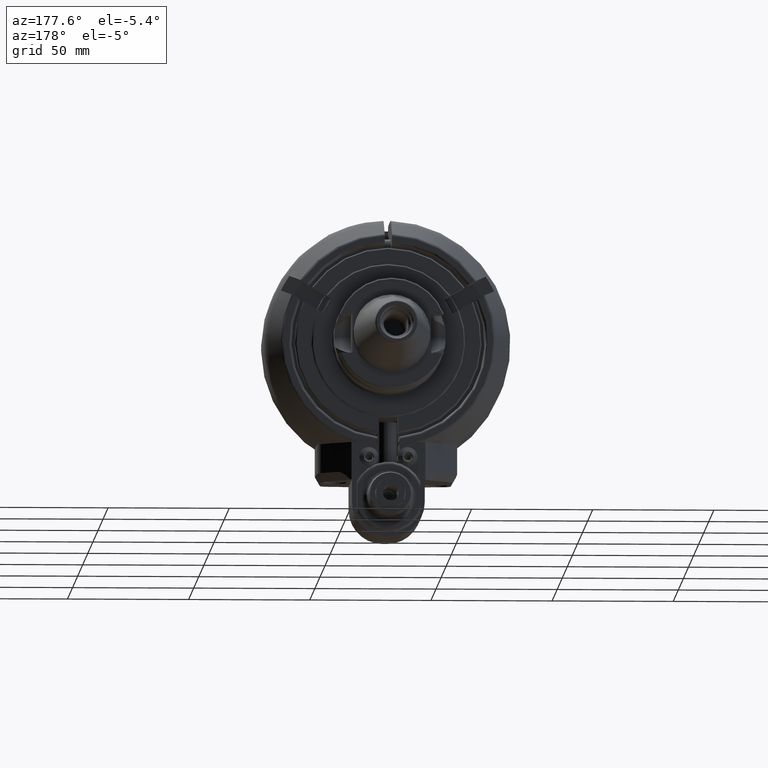
[diagram: clean part render]
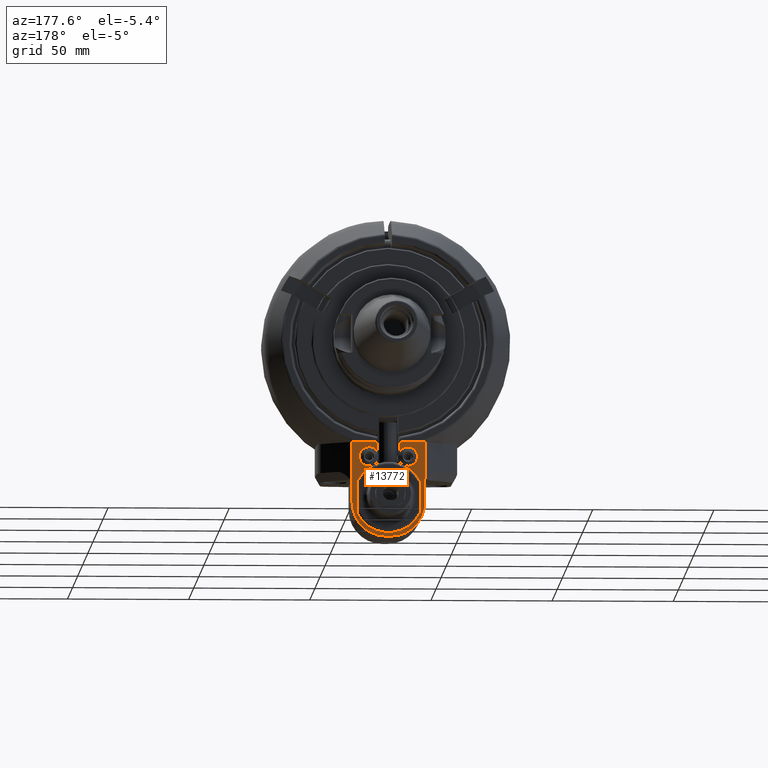
[diagram: same view with one face highlighted and labeled with its STEP entity id]
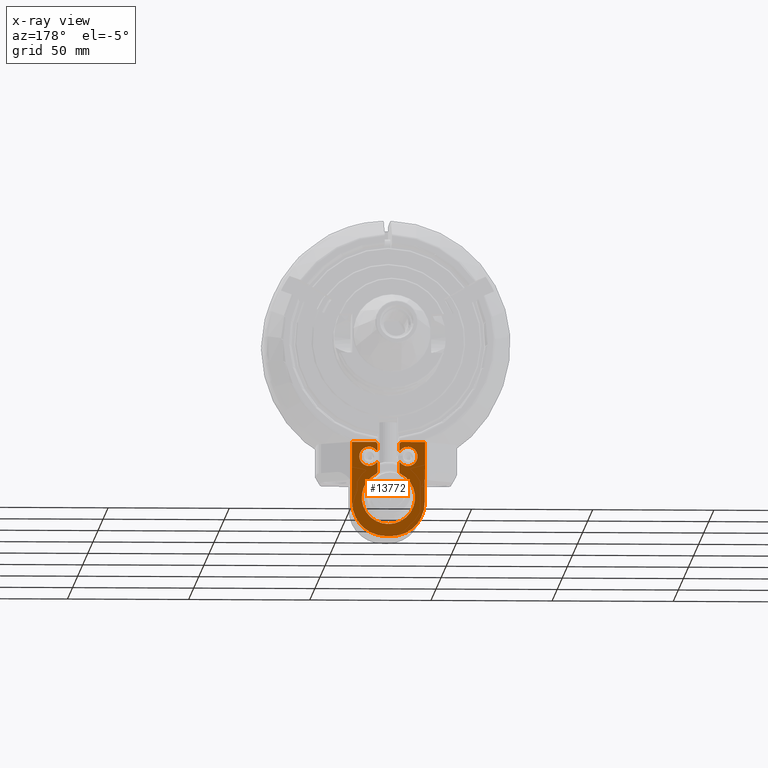
[diagram: x-ray of the same camera — body ghosted, the highlighted face saturated]
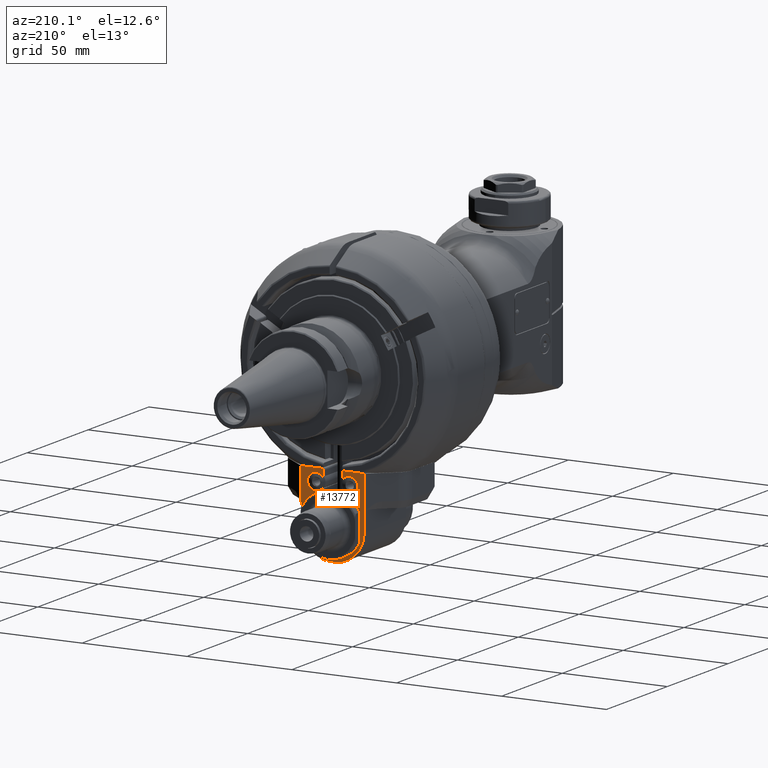
[diagram: same view with one face highlighted and labeled with its STEP entity id]
A machine part, auxiliary view. The second image highlights one B-rep face of the part: STEP entity #13772.
The next image is the same camera in x-ray: the body ghosted, the highlighted face saturated — about 0% of this face is hidden behind the body in this view.
A second angle (auxiliary view) of the same face is appended — the face is thin or edge-on in the first view.
In plain terms, the highlighted planar face has unit normal (0, 1, -0).
Its self-contained STEP definition (entity closure, byte-faithful):
#797=PLANE('',#15030);
#1554=FACE_OUTER_BOUND('',#2478,.T.);
#2478=EDGE_LOOP('',(#10700,#10701,#10702,#10703,#10704,#10705,#10706,#10707,
#10708,#10709,#10710,#10711,#10712,#10713,#10714,#10715,#10716,#10717,#10718,
#10719,#10720,#10721,#10722,#10723,#10724,#10725,#10726,#10727,#10728,#10729));
#3467=CIRCLE('',#15031,14.);
#3468=CIRCLE('',#15032,14.);
#3469=CIRCLE('',#15033,1.);
#3470=CIRCLE('',#15034,4.);
#3471=CIRCLE('',#15035,1.);
#3472=CIRCLE('',#15036,11.);
#3473=CIRCLE('',#15037,1.);
#3474=CIRCLE('',#15038,4.);
#3475=CIRCLE('',#15039,4.);
#3476=CIRCLE('',#15040,1.);
#4339=LINE('',#22636,#5213);
#4343=LINE('',#22644,#5217);
#4356=LINE('',#22711,#5230);
#4367=LINE('',#22758,#5241);
#4369=LINE('',#22762,#5243);
#4370=LINE('',#22764,#5244);
#4371=LINE('',#22766,#5245);
#4372=LINE('',#22768,#5246);
#4373=LINE('',#22770,#5247);
#4374=LINE('',#22772,#5248);
#4375=LINE('',#22776,#5249);
#4376=LINE('',#22778,#5250);
#4377=LINE('',#22782,#5251);
#4378=LINE('',#22784,#5252);
#4379=LINE('',#22788,#5253);
#4380=LINE('',#22790,#5254);
#4381=LINE('',#22798,#5255);
#4382=LINE('',#22800,#5256);
#4383=LINE('',#22806,#5257);
#4384=LINE('',#22808,#5258);
#5213=VECTOR('',#17654,9.612848348261);
#5217=VECTOR('',#17658,9.612848348261);
#5230=VECTOR('',#17703,0.1128483482606);
#5241=VECTOR('',#17736,9.5);
#5243=VECTOR('',#17740,15.5);
#5244=VECTOR('',#17741,0.1128483482606);
#5245=VECTOR('',#17742,0.7629679276389);
#5246=VECTOR('',#17743,10.);
#5247=VECTOR('',#17744,10.);
#5248=VECTOR('',#17745,8.70839142844);
#5249=VECTOR('',#17748,2.);
#5250=VECTOR('',#17751,15.5);
#5251=VECTOR('',#17754,2.5);
#5252=VECTOR('',#17755,0.3775010008008);
#5253=VECTOR('',#17758,0.3775010008008);
#5254=VECTOR('',#17759,3.834635496149);
#5255=VECTOR('',#17766,3.834635496149);
#5256=VECTOR('',#17767,0.3775010008008);
#5257=VECTOR('',#17772,0.3775010008008);
#5258=VECTOR('',#17773,2.5);
#6255=VERTEX_POINT('',#22633);
#6256=VERTEX_POINT('',#22635);
#6259=VERTEX_POINT('',#22641);
#6260=VERTEX_POINT('',#22643);
#6285=VERTEX_POINT('',#22708);
#6286=VERTEX_POINT('',#22710);
#6292=VERTEX_POINT('',#22757);
#6293=VERTEX_POINT('',#22761);
#6294=VERTEX_POINT('',#22763);
#6295=VERTEX_POINT('',#22765);
#6296=VERTEX_POINT('',#22767);
#6297=VERTEX_POINT('',#22769);
#6298=VERTEX_POINT('',#22771);
#6299=VERTEX_POINT('',#22773);
#6300=VERTEX_POINT('',#22775);
#6301=VERTEX_POINT('',#22779);
#6302=VERTEX_POINT('',#22781);
#6303=VERTEX_POINT('',#22783);
#6304=VERTEX_POINT('',#22785);
#6305=VERTEX_POINT('',#22787);
#6306=VERTEX_POINT('',#22789);
#6307=VERTEX_POINT('',#22791);
#6308=VERTEX_POINT('',#22793);
#6309=VERTEX_POINT('',#22795);
#6310=VERTEX_POINT('',#22797);
#6311=VERTEX_POINT('',#22799);
#6312=VERTEX_POINT('',#22801);
#6313=VERTEX_POINT('',#22803);
#6314=VERTEX_POINT('',#22805);
#6315=VERTEX_POINT('',#22807);
#7856=EDGE_CURVE('',#6256,#6255,#4339,.T.);
#7860=EDGE_CURVE('',#6259,#6260,#4343,.T.);
#7890=EDGE_CURVE('',#6286,#6285,#4356,.T.);
#7905=EDGE_CURVE('',#6292,#6286,#4367,.T.);
#7907=EDGE_CURVE('',#6293,#6255,#4369,.T.);
#7908=EDGE_CURVE('',#6293,#6294,#4370,.T.);
#7909=EDGE_CURVE('',#6295,#6294,#4371,.T.);
#7910=EDGE_CURVE('',#6295,#6296,#4372,.T.);
#7911=EDGE_CURVE('',#6296,#6297,#4373,.T.);
#7912=EDGE_CURVE('',#6298,#6297,#4374,.T.);
#7913=EDGE_CURVE('',#6298,#6299,#3467,.T.);
#7914=EDGE_CURVE('',#6299,#6300,#4375,.T.);
#7915=EDGE_CURVE('',#6300,#6292,#3468,.T.);
#7916=EDGE_CURVE('',#6260,#6285,#4376,.T.);
#7917=EDGE_CURVE('',#6259,#6301,#3469,.T.);
#7918=EDGE_CURVE('',#6301,#6302,#4377,.T.);
#7919=EDGE_CURVE('',#6303,#6302,#4378,.T.);
#7920=EDGE_CURVE('',#6303,#6304,#3470,.T.);
#7921=EDGE_CURVE('',#6305,#6304,#4379,.T.);
#7922=EDGE_CURVE('',#6305,#6306,#4380,.T.);
#7923=EDGE_CURVE('',#6306,#6307,#3471,.T.);
#7924=EDGE_CURVE('',#6307,#6308,#3472,.T.);
#7925=EDGE_CURVE('',#6308,#6309,#3473,.T.);
#7926=EDGE_CURVE('',#6309,#6310,#4381,.T.);
#7927=EDGE_CURVE('',#6311,#6310,#4382,.T.);
#7928=EDGE_CURVE('',#6311,#6312,#3474,.T.);
#7929=EDGE_CURVE('',#6312,#6313,#3475,.T.);
#7930=EDGE_CURVE('',#6314,#6313,#4383,.T.);
#7931=EDGE_CURVE('',#6314,#6315,#4384,.T.);
#7932=EDGE_CURVE('',#6315,#6256,#3476,.T.);
#10700=ORIENTED_EDGE('',*,*,#7907,.F.);
#10701=ORIENTED_EDGE('',*,*,#7908,.T.);
#10702=ORIENTED_EDGE('',*,*,#7909,.F.);
#10703=ORIENTED_EDGE('',*,*,#7910,.T.);
#10704=ORIENTED_EDGE('',*,*,#7911,.T.);
#10705=ORIENTED_EDGE('',*,*,#7912,.F.);
#10706=ORIENTED_EDGE('',*,*,#7913,.T.);
#10707=ORIENTED_EDGE('',*,*,#7914,.T.);
#10708=ORIENTED_EDGE('',*,*,#7915,.T.);
#10709=ORIENTED_EDGE('',*,*,#7905,.T.);
#10710=ORIENTED_EDGE('',*,*,#7890,.T.);
#10711=ORIENTED_EDGE('',*,*,#7916,.F.);
#10712=ORIENTED_EDGE('',*,*,#7860,.F.);
#10713=ORIENTED_EDGE('',*,*,#7917,.T.);
#10714=ORIENTED_EDGE('',*,*,#7918,.T.);
#10715=ORIENTED_EDGE('',*,*,#7919,.F.);
#10716=ORIENTED_EDGE('',*,*,#7920,.T.);
#10717=ORIENTED_EDGE('',*,*,#7921,.F.);
#10718=ORIENTED_EDGE('',*,*,#7922,.T.);
#10719=ORIENTED_EDGE('',*,*,#7923,.T.);
#10720=ORIENTED_EDGE('',*,*,#7924,.T.);
#10721=ORIENTED_EDGE('',*,*,#7925,.T.);
#10722=ORIENTED_EDGE('',*,*,#7926,.T.);
#10723=ORIENTED_EDGE('',*,*,#7927,.F.);
#10724=ORIENTED_EDGE('',*,*,#7928,.T.);
#10725=ORIENTED_EDGE('',*,*,#7929,.T.);
#10726=ORIENTED_EDGE('',*,*,#7930,.F.);
#10727=ORIENTED_EDGE('',*,*,#7931,.T.);
#10728=ORIENTED_EDGE('',*,*,#7932,.T.);
#10729=ORIENTED_EDGE('',*,*,#7856,.T.);
#13772=ADVANCED_FACE('',(#1554),#797,.T.);
#15030=AXIS2_PLACEMENT_3D('',#22760,#17738,#17739);
#15031=AXIS2_PLACEMENT_3D('',#22774,#17746,#17747);
#15032=AXIS2_PLACEMENT_3D('',#22777,#17749,#17750);
#15033=AXIS2_PLACEMENT_3D('',#22780,#17752,#17753);
#15034=AXIS2_PLACEMENT_3D('',#22786,#17756,#17757);
#15035=AXIS2_PLACEMENT_3D('',#22792,#17760,#17761);
#15036=AXIS2_PLACEMENT_3D('',#22794,#17762,#17763);
#15037=AXIS2_PLACEMENT_3D('',#22796,#17764,#17765);
#15038=AXIS2_PLACEMENT_3D('',#22802,#17768,#17769);
#15039=AXIS2_PLACEMENT_3D('',#22804,#17770,#17771);
#15040=AXIS2_PLACEMENT_3D('',#22809,#17774,#17775);
#17654=DIRECTION('',(1.,0.,0.));
#17658=DIRECTION('',(-1.,0.,0.));
#17703=DIRECTION('',(-1.,0.,0.));
#17736=DIRECTION('',(0.,0.,1.));
#17738=DIRECTION('center_axis',(0.,1.,0.));
#17739=DIRECTION('ref_axis',(0.,0.,1.));
#17740=DIRECTION('',(0.,0.,1.));
#17741=DIRECTION('',(-1.,0.,0.));
#17742=DIRECTION('',(-3.073496587321E-9,-8.754105479655E-13,1.));
#17743=DIRECTION('',(-0.511856989632144,0.,-0.859070673556442));
#17744=DIRECTION('',(0.98864812341285,0.,-0.150249419540475));
#17745=DIRECTION('',(0.,0.,1.));
#17746=DIRECTION('center_axis',(0.,1.,0.));
#17747=DIRECTION('ref_axis',(1.,0.,0.));
#17748=DIRECTION('',(-1.,0.,0.));
#17749=DIRECTION('center_axis',(0.,1.,0.));
#17750=DIRECTION('ref_axis',(0.,0.,-1.));
#17751=DIRECTION('',(0.,0.,-1.));
#17752=DIRECTION('center_axis',(0.,1.,0.));
#17753=DIRECTION('ref_axis',(0.,0.,1.));
#17754=DIRECTION('',(0.,0.,-1.));
#17755=DIRECTION('',(1.,0.,0.));
#17756=DIRECTION('center_axis',(0.,-1.,0.));
#17757=DIRECTION('ref_axis',(-1.,0.,0.));
#17758=DIRECTION('',(-1.,0.,0.));
#17759=DIRECTION('',(0.,0.,-1.));
#17760=DIRECTION('center_axis',(0.,1.,0.));
#17761=DIRECTION('ref_axis',(1.,0.,0.));
#17762=DIRECTION('center_axis',(0.,-1.,0.));
#17763=DIRECTION('ref_axis',(0.,0.,-1.));
#17764=DIRECTION('center_axis',(0.,1.,0.));
#17765=DIRECTION('ref_axis',(-0.458333333332909,0.,-0.888780375321117));
#17766=DIRECTION('',(0.,0.,1.));
#17767=DIRECTION('',(-1.,0.,0.));
#17768=DIRECTION('center_axis',(0.,-1.,0.));
#17769=DIRECTION('ref_axis',(1.,0.,0.));
#17770=DIRECTION('center_axis',(0.,-1.,0.));
#17771=DIRECTION('ref_axis',(1.,0.,0.));
#17772=DIRECTION('',(1.,0.,0.));
#17773=DIRECTION('',(0.,0.,1.));
#17774=DIRECTION('center_axis',(0.,1.,0.));
#17775=DIRECTION('ref_axis',(-1.,0.,0.));
#22633=CARTESIAN_POINT('',(15.11284834826,39.5,-42.));
#22635=CARTESIAN_POINT('',(5.5,39.5,-42.));
#22636=CARTESIAN_POINT('',(5.5,39.5,-42.));
#22641=CARTESIAN_POINT('',(-5.5,39.5,-42.));
#22643=CARTESIAN_POINT('',(-15.11284834826,39.5,-42.));
#22644=CARTESIAN_POINT('',(-5.5,39.5,-42.));
#22708=CARTESIAN_POINT('',(-15.11284834826,39.5,-57.5));
#22710=CARTESIAN_POINT('',(-15.,39.5,-57.5));
#22711=CARTESIAN_POINT('',(-15.,39.5,-57.5));
#22757=CARTESIAN_POINT('',(-15.,39.5,-67.));
#22758=CARTESIAN_POINT('',(-15.,39.5,-67.));
#22760=CARTESIAN_POINT('Origin',(0.,39.5,-40.75));
#22761=CARTESIAN_POINT('',(15.11284834826,39.5,-57.5));
#22762=CARTESIAN_POINT('',(15.11284834826,39.5,-57.5));
#22763=CARTESIAN_POINT('',(15.,39.5,-57.5));
#22764=CARTESIAN_POINT('',(15.11284834826,39.5,-57.5));
#22765=CARTESIAN_POINT('',(15.000000003054,39.5000000001996,-58.2629679283757));
#22766=CARTESIAN_POINT('',(15.00000000234,39.5,-58.26296792764));
#22767=CARTESIAN_POINT('',(14.98435207752,39.5,-58.28923048454));
#22768=CARTESIAN_POINT('',(15.00000000234,39.5,-58.26296792764));
#22769=CARTESIAN_POINT('',(15.,39.5,-58.29160857156));
#22770=CARTESIAN_POINT('',(14.98435207752,39.5,-58.28923048454));
#22771=CARTESIAN_POINT('',(15.,39.5,-67.));
#22772=CARTESIAN_POINT('',(15.,39.5,-67.));
#22773=CARTESIAN_POINT('',(1.,39.5,-81.));
#22774=CARTESIAN_POINT('Origin',(1.,39.5,-67.));
#22775=CARTESIAN_POINT('',(-1.,39.5,-81.));
#22776=CARTESIAN_POINT('',(1.,39.5,-81.));
#22777=CARTESIAN_POINT('Origin',(-1.,39.5,-67.));
#22778=CARTESIAN_POINT('',(-15.11284834826,39.5,-42.));
#22779=CARTESIAN_POINT('',(-4.5,39.5,-43.));
#22780=CARTESIAN_POINT('Origin',(-5.5,39.5,-43.));
#22781=CARTESIAN_POINT('',(-4.5,39.5,-45.5));
#22782=CARTESIAN_POINT('',(-4.5,39.5,-43.));
#22783=CARTESIAN_POINT('',(-4.877501000801,39.5,-45.5));
#22784=CARTESIAN_POINT('',(-4.877501000801,39.5,-45.5));
#22785=CARTESIAN_POINT('',(-4.877501000801,39.5,-50.5));
#22786=CARTESIAN_POINT('Origin',(-8.,39.5,-48.));
#22787=CARTESIAN_POINT('',(-4.5,39.5,-50.5));
#22788=CARTESIAN_POINT('',(-4.5,39.5,-50.5));
#22789=CARTESIAN_POINT('',(-4.5,39.5,-54.33463549615));
#22790=CARTESIAN_POINT('',(-4.5,39.5,-50.5));
#22791=CARTESIAN_POINT('',(-5.041666666667,39.5,-55.22341587147));
#22792=CARTESIAN_POINT('Origin',(-5.5,39.5,-54.33463549615));
#22793=CARTESIAN_POINT('',(5.041666666667,39.5,-55.22341587147));
#22794=CARTESIAN_POINT('Origin',(0.,39.5,-65.));
#22795=CARTESIAN_POINT('',(4.5,39.5,-54.33463549615));
#22796=CARTESIAN_POINT('Origin',(5.5,39.5,-54.33463549615));
#22797=CARTESIAN_POINT('',(4.5,39.5,-50.5));
#22798=CARTESIAN_POINT('',(4.5,39.5,-54.33463549615));
#22799=CARTESIAN_POINT('',(4.877501000801,39.5,-50.5));
#22800=CARTESIAN_POINT('',(4.877501000801,39.5,-50.5));
#22801=CARTESIAN_POINT('',(12.,39.5,-48.));
#22802=CARTESIAN_POINT('Origin',(8.,39.5,-48.));
#22803=CARTESIAN_POINT('',(4.877501000801,39.5,-45.5));
#22804=CARTESIAN_POINT('Origin',(8.,39.5,-48.));
#22805=CARTESIAN_POINT('',(4.5,39.5,-45.5));
#22806=CARTESIAN_POINT('',(4.5,39.5,-45.5));
#22807=CARTESIAN_POINT('',(4.5,39.5,-43.));
#22808=CARTESIAN_POINT('',(4.5,39.5,-45.5));
#22809=CARTESIAN_POINT('Origin',(5.5,39.5,-43.));